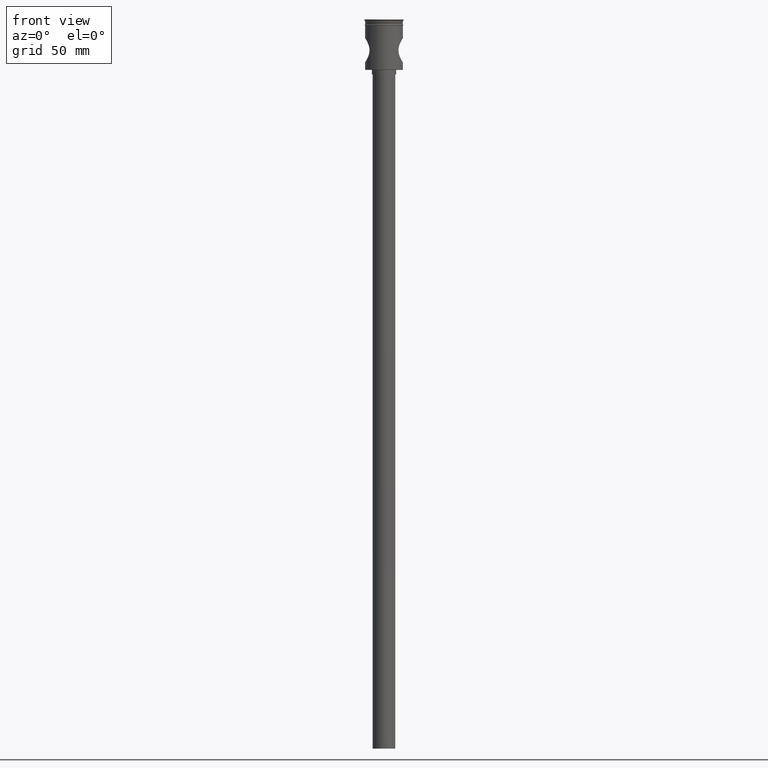
[diagram: clean part render]
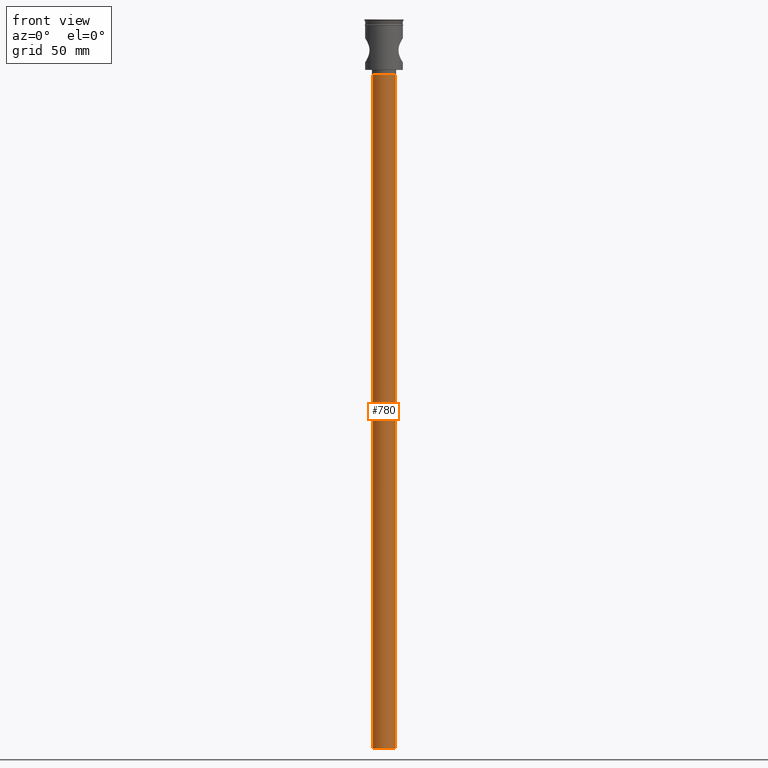
[diagram: same view with one face highlighted and labeled with its STEP entity id]
A machine part, front view. The second image highlights one B-rep face of the part: STEP entity #780.
In plain terms, the highlighted cylindrical surface (edge-blend (fillet) strip) has radius 7.5 mm, axis along (-0, -0, 1).
Its self-contained STEP definition (entity closure, byte-faithful):
#25 = EDGE_CURVE ( 'NONE', #1118, #336, #418, .T. ) ;
#49 = VECTOR ( 'NONE', #813, 1000.000000000000000 ) ;
#78 = LINE ( 'NONE', #1501, #49 ) ;
#83 = VERTEX_POINT ( 'NONE', #227 ) ;
#153 = AXIS2_PLACEMENT_3D ( 'NONE', #1017, #1148, #916 ) ;
#180 = EDGE_CURVE ( 'NONE', #1025, #1118, #1376, .T. ) ;
#194 = DIRECTION ( 'NONE',  ( 1.000000000000000000, 0.000000000000000000, 0.000000000000000000 ) ) ;
#227 = CARTESIAN_POINT ( 'NONE',  ( -7.500000000000000000, 9.184850993605147944E-16, -483.5000000000000568 ) ) ;
#257 = EDGE_CURVE ( 'NONE', #83, #336, #78, .T. ) ;
#299 = CARTESIAN_POINT ( 'NONE',  ( 7.500000000000000000, 0.000000000000000000, -483.5000000000000568 ) ) ;
#302 = ORIENTED_EDGE ( 'NONE', *, *, #25, .T. ) ;
#306 = FACE_OUTER_BOUND ( 'NONE', #1238, .T. ) ;
#336 = VERTEX_POINT ( 'NONE', #1193 ) ;
#340 = DIRECTION ( 'NONE',  ( 0.000000000000000000, 0.000000000000000000, -1.000000000000000000 ) ) ;
#385 = DIRECTION ( 'NONE',  ( -0.000000000000000000, -0.000000000000000000, 1.000000000000000000 ) ) ;
#417 = CARTESIAN_POINT ( 'NONE',  ( 7.500000000000000000, 0.000000000000000000, -483.5000000000000568 ) ) ;
#418 = CIRCLE ( 'NONE', #442, 7.500000000000000000 ) ;
#436 = ORIENTED_EDGE ( 'NONE', *, *, #257, .F. ) ;
#442 = AXIS2_PLACEMENT_3D ( 'NONE', #1396, #340, #1161 ) ;
#545 = CYLINDRICAL_SURFACE ( 'NONE', #1245, 7.500000000000000000 ) ;
#780 = ADVANCED_FACE ( 'NONE', ( #306 ), #545, .T. ) ;
#813 = DIRECTION ( 'NONE',  ( -0.000000000000000000, -0.000000000000000000, 1.000000000000000000 ) ) ;
#916 = DIRECTION ( 'NONE',  ( -1.000000000000000000, 0.000000000000000000, 0.000000000000000000 ) ) ;
#1004 = ORIENTED_EDGE ( 'NONE', *, *, #1147, .F. ) ;
#1017 = CARTESIAN_POINT ( 'NONE',  ( 0.000000000000000000, 0.000000000000000000, -483.5000000000000568 ) ) ;
#1019 = ORIENTED_EDGE ( 'NONE', *, *, #180, .T. ) ;
#1025 = VERTEX_POINT ( 'NONE', #417 ) ;
#1102 = VECTOR ( 'NONE', #385, 1000.000000000000000 ) ;
#1118 = VERTEX_POINT ( 'NONE', #1214 ) ;
#1147 = EDGE_CURVE ( 'NONE', #1025, #83, #1347, .T. ) ;
#1148 = DIRECTION ( 'NONE',  ( 0.000000000000000000, 0.000000000000000000, -1.000000000000000000 ) ) ;
#1161 = DIRECTION ( 'NONE',  ( -1.000000000000000000, 0.000000000000000000, 0.000000000000000000 ) ) ;
#1193 = CARTESIAN_POINT ( 'NONE',  ( -7.500000000000000000, 9.184850993605147944E-16, -36.50000000000000711 ) ) ;
#1214 = CARTESIAN_POINT ( 'NONE',  ( 7.500000000000000000, 0.000000000000000000, -36.50000000000000711 ) ) ;
#1238 = EDGE_LOOP ( 'NONE', ( #436, #1004, #1019, #302 ) ) ;
#1245 = AXIS2_PLACEMENT_3D ( 'NONE', #1399, #1371, #194 ) ;
#1347 = CIRCLE ( 'NONE', #153, 7.500000000000000000 ) ;
#1371 = DIRECTION ( 'NONE',  ( -0.000000000000000000, -0.000000000000000000, 1.000000000000000000 ) ) ;
#1376 = LINE ( 'NONE', #299, #1102 ) ;
#1396 = CARTESIAN_POINT ( 'NONE',  ( 0.000000000000000000, 0.000000000000000000, -36.50000000000000711 ) ) ;
#1399 = CARTESIAN_POINT ( 'NONE',  ( 0.000000000000000000, 0.000000000000000000, -483.5000000000000568 ) ) ;
#1501 = CARTESIAN_POINT ( 'NONE',  ( -7.500000000000000000, 9.184850993605147944E-16, -483.5000000000000568 ) ) ;